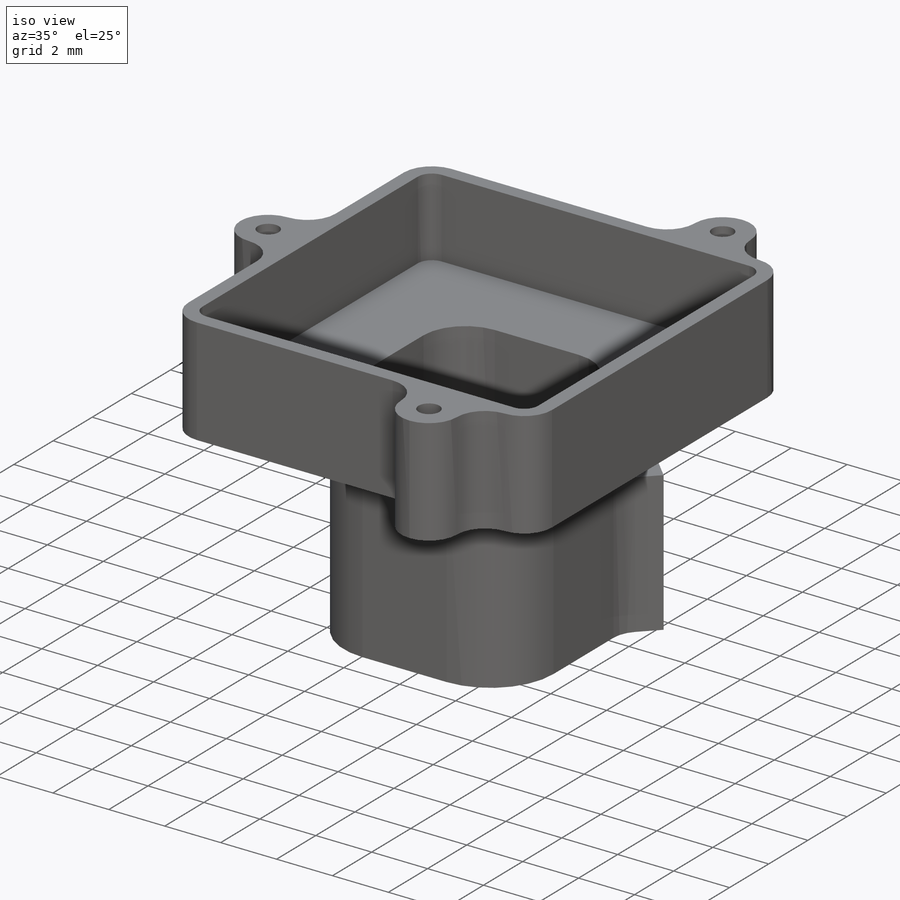
[diagram: iso view]
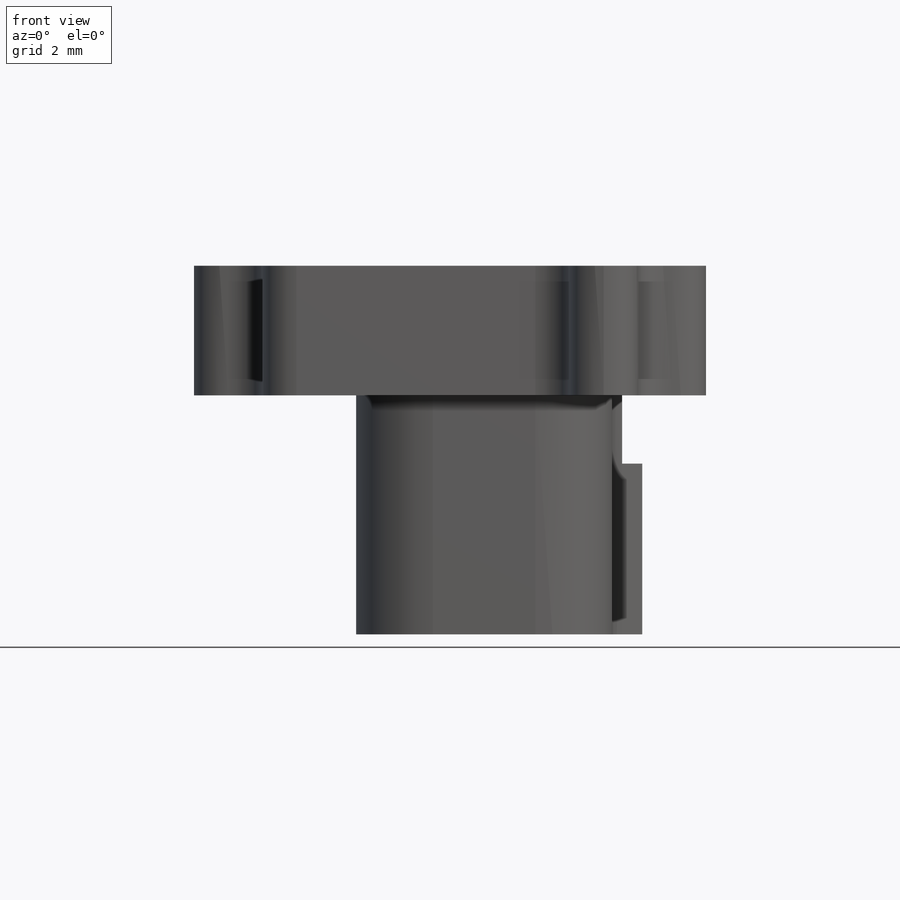
[diagram: front view]
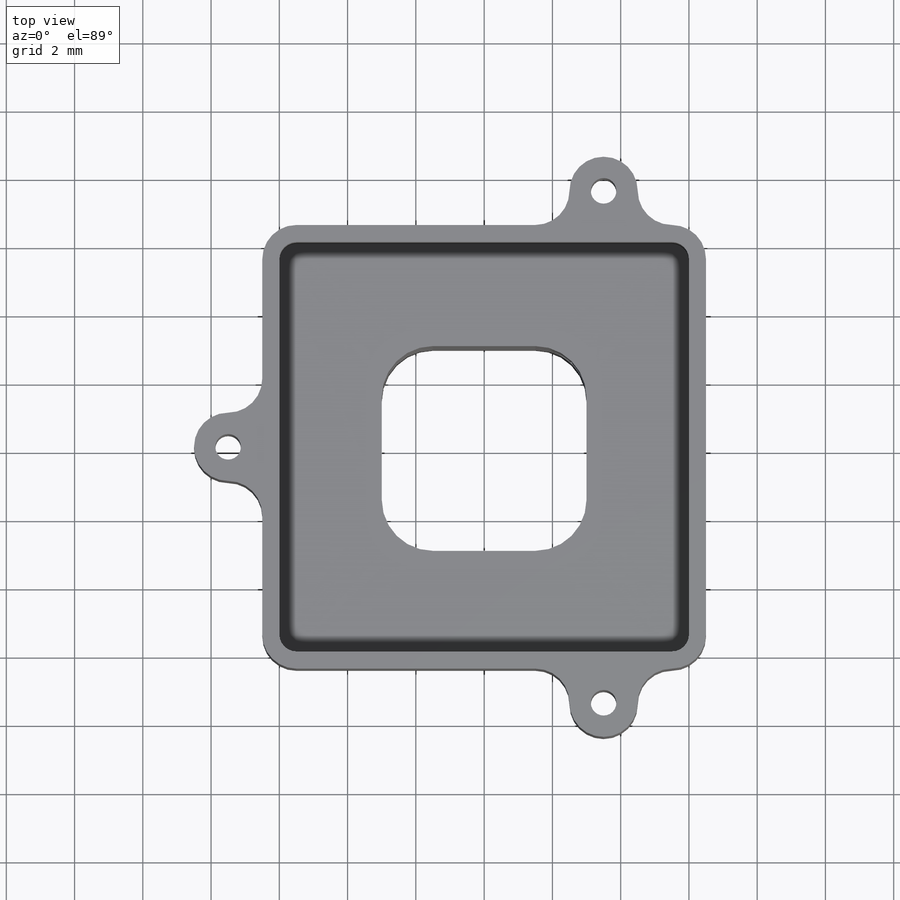
[diagram: top view]
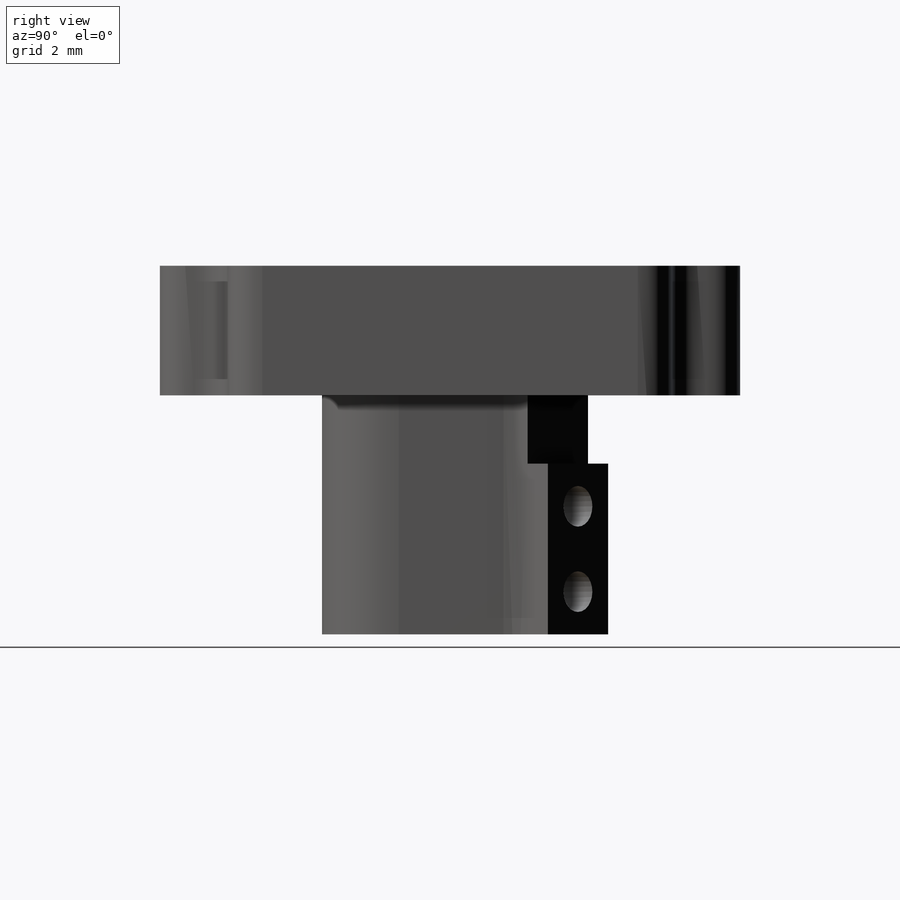
[diagram: right view]
SOLIDWORKS PART (.sldprt)
format: sldprt  version: not decoded by parser v0  size: 416,256 bytes
history: native  units: mm
features: sketch x10, fillet x6, extrude x4, cut_extrude x3, material x1, hole x1 (+11 scaffold rows collapsed)
feature tree (36):
  scaffold x11  (default folders/planes/origin — collapsed)
  material  "Material <not specified>"
  sketch  "Sketch1"  dims[c1.D1=6.5mm c1.D2=6.5mm c2.D1=9.5mm c2.D2=7.5mm]
  extrude  "Boss-Extrude1"  Depth=7mm
  sketch  "Sketch2"  dims[D1=13.0mm D2=13.0mm]
  extrude  "Boss-Extrude2"  Depth=3.8mm
  sketch  "Sketch3"  dims[D1=7.0mm D2=6.0mm]
  cut_extrude  "Cut-Extrude1"  [1 undecoded]
  sketch  "Sketch6"  dims[D1=12.0mm D2=12.0mm]
  cut_extrude  "Cut-Extrude3"  Depth=1mm
  fillet  "Fillet1"  Radius=0.5mm
  sketch  "Sketch12"  dims[c1.D1=~1.799607mm c2.D1=45.0deg c2.D2=2.5mm c2.D3=0.25mm]
  extrude  "Boss-Extrude3"  [1 undecoded]
  fillet  "Fillet4"  Radius=1.5mm
  fillet  "Fillet2"  Radius=1mm
  sketch  "Sketch13"  dims[D1=1.25mm D2=2.5mm]
  hole  "Tap Drill for #0-80 Tap1"  Diameter=1.19126mm Depth=7.11mm
  sketch  "Sketch15"
  sketch  "Sketch14"  dims[hole-wizard template sketch: 46 standard entries collapsed; hole parameters kept: c15.Hole Dia.=~1.19126mm c15.Hole Depth=7.11mm c15.D3=~14.816244mm c15.Drill Angle=118.0deg]
  fillet  "Fillet5"  Radius=2.25mm
  sketch  "Sketch16"  dims[D1=5.0mm]
  cut_extrude  "Cut-Extrude4"  [1 undecoded]
  fillet  "Fillet6"  Radius=1mm
  sketch  "Sketch17"  dims[D2=0.75mm D1=2.0mm D3=2.0mm D4=1.0mm]
  extrude  "Boss-Extrude4"  [1 undecoded]
  fillet  "Fillet7"  Radius=1mm
decode coverage: 19 of 24 modeling features carry decoded parameters
note: ~ marks probable driven/reference dimensions
note: 4 parameter values undecoded
summary: no parameter record found for 4 features
note: suppression state not decoded; provenance and decode notes live in map.json
